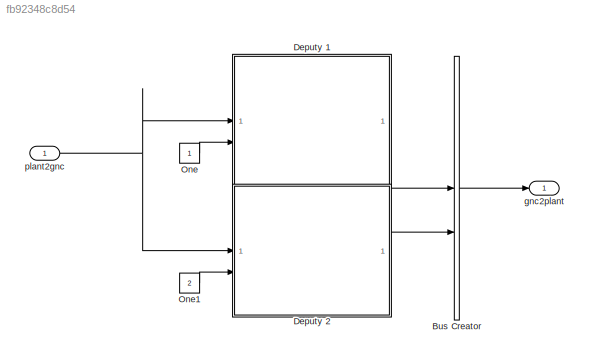
MODEL slx_fb92348c8d54
KIND model
CONFIG AbsTol = auto
CONFIG EnableMultiTasking = off
CONFIG FixedStep = dt_gnc
CONFIG MaxStep = auto
CONFIG MinStep = auto
CONFIG RelTol = 1e-3
CONFIG SampleTimeConstraint = Unconstrained
CONFIG SolverName = ode4
CONFIG StartTime = 0.0
CONFIG StopTime = 10.0
BLOCK [BusCreator] Bus Creator
  DisplayOption = bar
  InheritFromInputs = off
  Inputs = 2
  NonVirtualBus = on
  OutDataTypeStr = Bus: gnc2plant
BLOCK [ModelReference] Deputy 1
  ModelNameDialog = gncDeputy
  ModelReferenceVersion = 1.37
  NameLocation = top
BLOCK [ModelReference] Deputy 2
  Commented = on
  ModelNameDialog = gncDeputy
  ModelReferenceVersion = 1.37
BLOCK [Constant] One
  OutDataTypeStr = Inherit: Inherit via back propagation
BLOCK [Constant] One1
  OutDataTypeStr = Inherit: Inherit via back propagation
  Value = 2
BLOCK [Outport] gnc2plant
  OutDataTypeStr = Bus: gnc2plant
BLOCK [Inport] plant2gnc
  BusOutputAsStruct = on
  OutDataTypeStr = Bus: plant2gnc
LINE Bus Creator:1 -> gnc2plant:1
LINE Deputy 1:1 -> Bus Creator:1
LINE Deputy 2:1 -> Bus Creator:2
LINE One1:1 -> Deputy 2:2
LINE One:1 -> Deputy 1:2
NET plant2gnc:1 -> Deputy 1:1, Deputy 2:1
note: NET lines group one-source signal fan-out (src -> all destinations, sorted); 1:1 wires keep LINE
